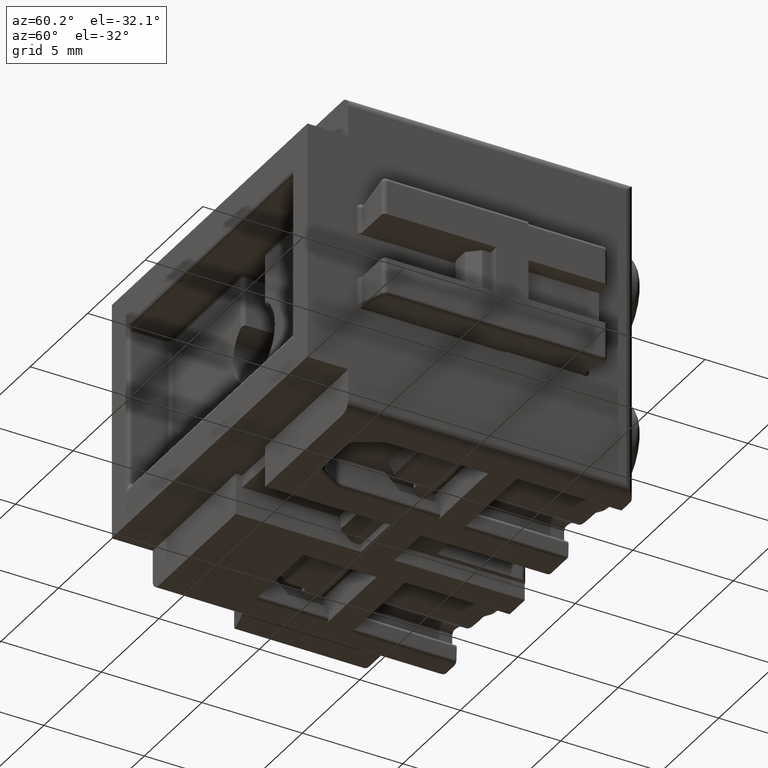
[diagram: clean part render]
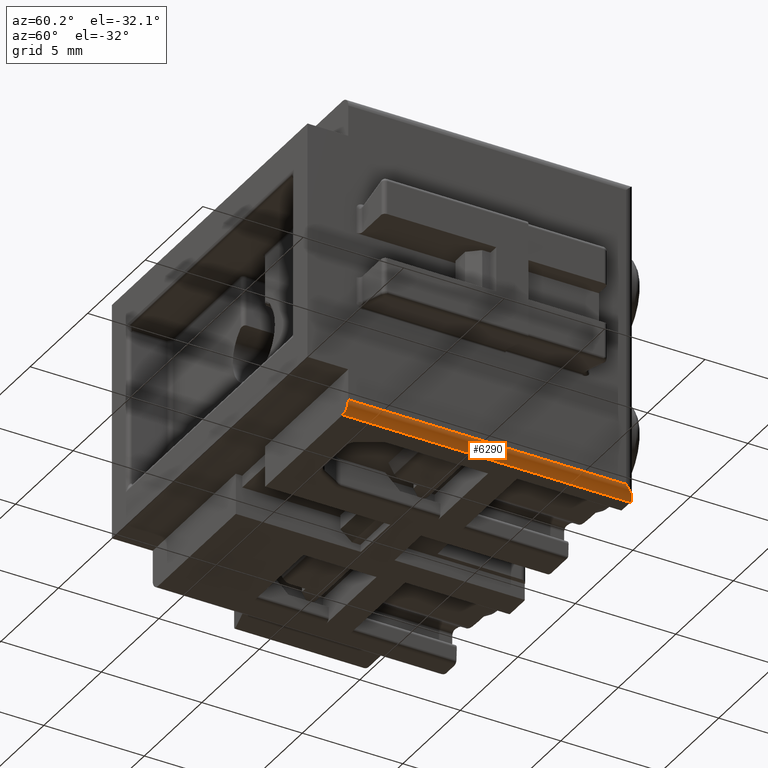
[diagram: same view with one face highlighted and labeled with its STEP entity id]
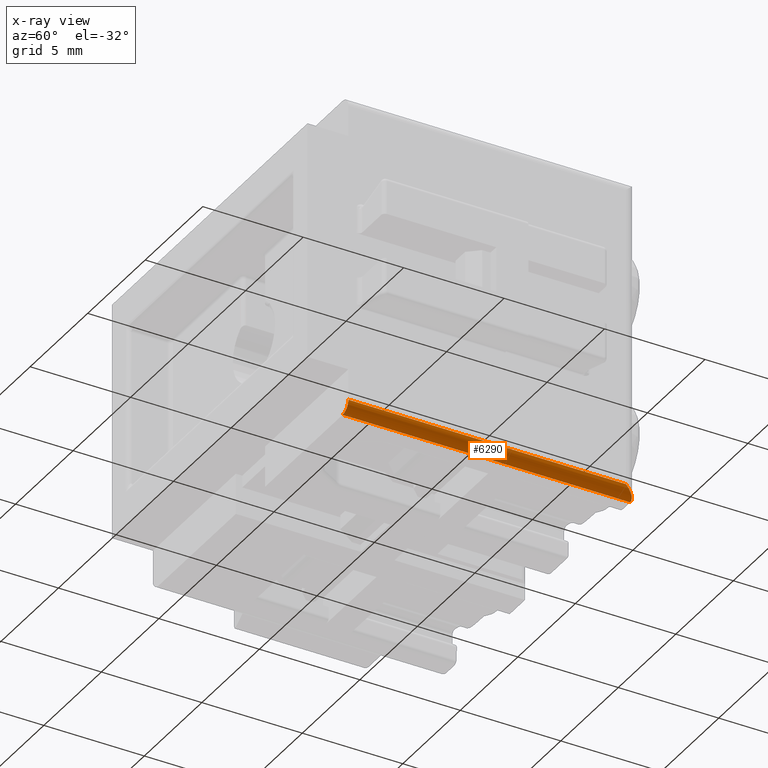
[diagram: x-ray of the same camera — body ghosted, the highlighted face saturated]
A machine part, auxiliary view. The second image highlights one B-rep face of the part: STEP entity #6290.
The next image is the same camera in x-ray: the body ghosted, the highlighted face saturated — about 0% of this face is hidden behind the body in this view.
In plain terms, the highlighted cylindrical surface (edge-blend (fillet) strip) has radius 0.5 mm, axis along (0, 1, 0).
Its self-contained STEP definition (entity closure, byte-faithful):
#199 = AXIS2_PLACEMENT_3D ( 'NONE', #8139, #8167, #8124 ) ;
#204 = VECTOR ( 'NONE', #8351, 1000.000000000000000 ) ;
#269 = AXIS2_PLACEMENT_3D ( 'NONE', #8399, #8411, #8412 ) ;
#290 = CIRCLE ( 'NONE', #269, 0.5000000000000004400 ) ;
#856 = VECTOR ( 'NONE', #16515, 1000.000000000000000 ) ;
#1436 = EDGE_CURVE ( 'NONE', #13788, #13810, #16512, .T. ) ;
#2341 = ORIENTED_EDGE ( 'NONE', *, *, #6346, .F. ) ;
#2362 = ORIENTED_EDGE ( 'NONE', *, *, #1436, .F. ) ;
#2369 = ORIENTED_EDGE ( 'NONE', *, *, #6362, .F. ) ;
#2408 = ORIENTED_EDGE ( 'NONE', *, *, #6334, .F. ) ;
#6290 = ADVANCED_FACE ( 'NONE', ( #8155 ), #8128, .T. ) ;
#6334 = EDGE_CURVE ( 'NONE', #14706, #14726, #8385, .T. ) ;
#6346 = EDGE_CURVE ( 'NONE', #13810, #14706, #290, .T. ) ;
#6362 = EDGE_CURVE ( 'NONE', #14726, #13788, #13906, .T. ) ;
#8124 = DIRECTION ( 'NONE',  ( 0.0000000000000000000, -2.775557561562888800E-014, 1.000000000000000000 ) ) ;
#8128 = CYLINDRICAL_SURFACE ( 'NONE', #199, 0.5000000000000004400 ) ;
#8139 = CARTESIAN_POINT ( 'NONE',  ( 27.65655536988765200, 42.84963753280955200, -17.67283801961435300 ) ) ;
#8155 = FACE_OUTER_BOUND ( 'NONE', #12913, .T. ) ;
#8167 = DIRECTION ( 'NONE',  ( 0.0000000000000000000, 1.000000000000000000, 2.793185071074504800E-014 ) ) ;
#8340 = CARTESIAN_POINT ( 'NONE',  ( 28.15655536988765200, 42.84963753280955200, -17.67283801961435300 ) ) ;
#8351 = DIRECTION ( 'NONE',  ( 0.0000000000000000000, 1.000000000000000000, 2.793185071074504800E-014 ) ) ;
#8385 = LINE ( 'NONE', #8340, #204 ) ;
#8399 = CARTESIAN_POINT ( 'NONE',  ( 27.65655536988784700, 29.02963753280830200, -17.67283801961509900 ) ) ;
#8411 = DIRECTION ( 'NONE',  ( -0.0000000000000000000, -1.000000000000000000, -0.0000000000000000000 ) ) ;
#8412 = DIRECTION ( 'NONE',  ( 0.0000000000000000000, 0.0000000000000000000, 1.000000000000000000 ) ) ;
#8454 = CARTESIAN_POINT ( 'NONE',  ( 28.15655536988765200, 42.84889991280964900, -17.67283801961435300 ) ) ;
#8458 = CARTESIAN_POINT ( 'NONE',  ( 28.15655536988765200, 43.14179313162311000, -17.96573123842779700 ) ) ;
#8460 = CARTESIAN_POINT ( 'NONE',  ( 27.94944858870110200, 43.34889991280966400, -18.17283801961433900 ) ) ;
#8481 = CARTESIAN_POINT ( 'NONE',  ( 27.65655536988765200, 43.34889991280964900, -18.17283801961435300 ) ) ;
#12913 = EDGE_LOOP ( 'NONE', ( #2408, #2341, #2362, #2369 ) ) ;
#13788 = VERTEX_POINT ( 'NONE', #17379 ) ;
#13810 = VERTEX_POINT ( 'NONE', #17359 ) ;
#13906 =( BOUNDED_CURVE ( )  B_SPLINE_CURVE ( 3, ( #8454, #8458, #8460, #8481 ),
 .UNSPECIFIED., .F., .T. ) 
 B_SPLINE_CURVE_WITH_KNOTS ( ( 4, 4 ),
 ( 4.712388980384689700, 6.283185307179586200 ),
 .UNSPECIFIED. ) 
 CURVE ( )  GEOMETRIC_REPRESENTATION_ITEM ( )  RATIONAL_B_SPLINE_CURVE ( ( 1.000000000000000000, 0.8047378541243649400, 0.8047378541243649400, 1.000000000000000000 ) ) 
 REPRESENTATION_ITEM ( '' )  );
#14706 = VERTEX_POINT ( 'NONE', #17795 ) ;
#14726 = VERTEX_POINT ( 'NONE', #17796 ) ;
#16512 = LINE ( 'NONE', #16514, #856 ) ;
#16514 = CARTESIAN_POINT ( 'NONE',  ( 27.65655536988765200, 42.84963753280965200, -18.17283801961435300 ) ) ;
#16515 = DIRECTION ( 'NONE',  ( -0.0000000000000000000, -1.000000000000000000, -2.793185071074504800E-014 ) ) ;
#17359 = CARTESIAN_POINT ( 'NONE',  ( 27.65655536988784700, 29.02963753280830200, -18.17283801961510300 ) ) ;
#17379 = CARTESIAN_POINT ( 'NONE',  ( 27.65655536988765200, 43.34889991280964900, -18.17283801961435300 ) ) ;
#17795 = CARTESIAN_POINT ( 'NONE',  ( 28.15655536988785100, 29.02963753280830200, -17.67283801961509900 ) ) ;
#17796 = CARTESIAN_POINT ( 'NONE',  ( 28.15655536988765200, 42.84889991280964900, -17.67283801961435300 ) ) ;